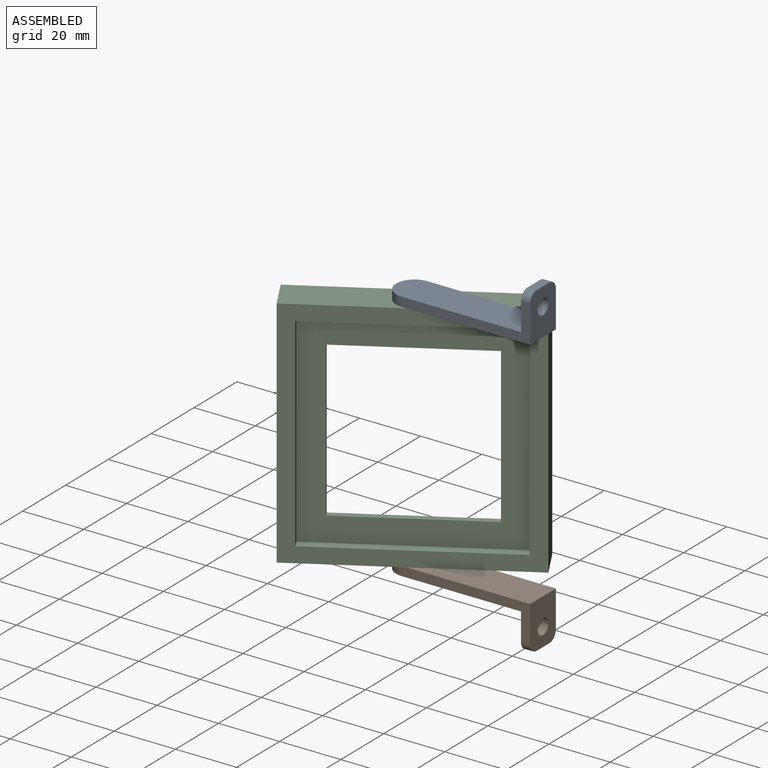
[diagram: assembled view]
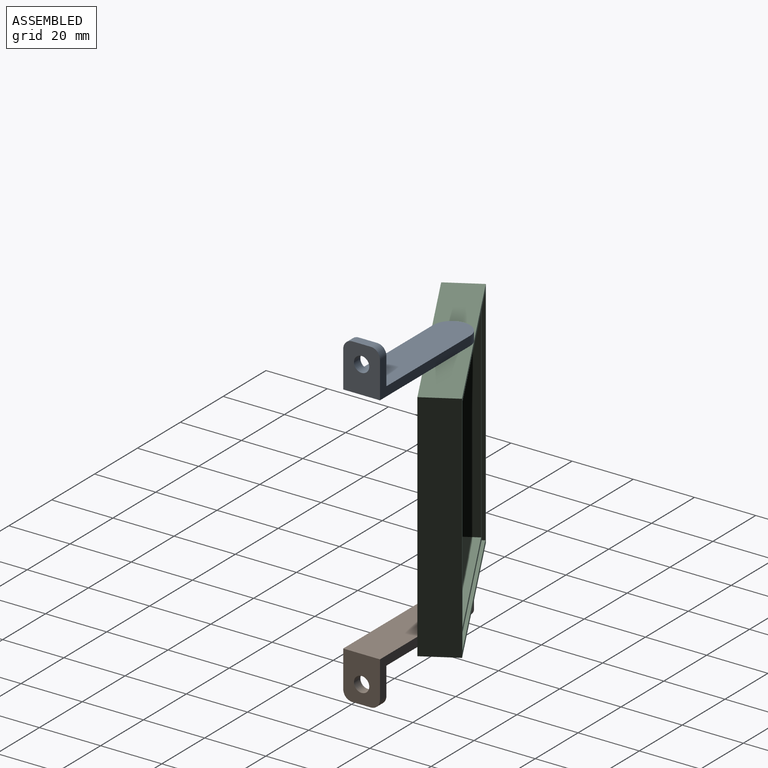
[diagram: assembled view, second angle]
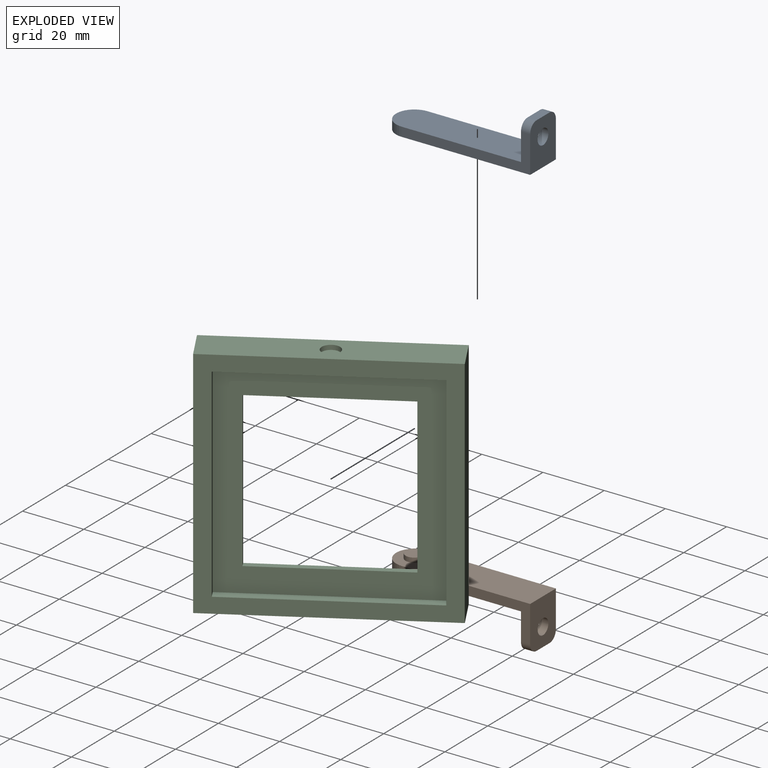
[diagram: exploded view]
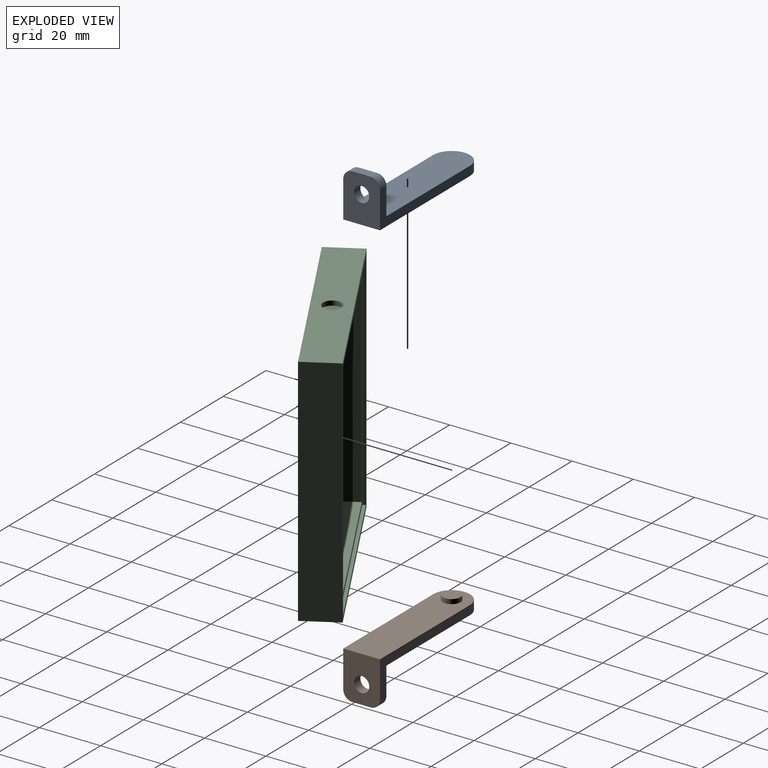
[diagram: exploded view, second angle]
ASSEMBLY  parts=3 mates=2
PART A: 13 faces, bbox 48x12x16.5 mm
  f0: plane 42x12mm, normal (0,1,0), area 153mm2, adj f1,f3,f4,f5,f8,f12
  f1: cylinder r=6mm len=12mm, axis (0,0,-1), area 56.5mm2, adj f0,f2,f4,f5
  f2: plane 42x12mm, normal (0,-1,0), area 153mm2, adj f1,f3,f4,f5,f8,f11
  f3: plane 15x12mm, normal (1,0,0), area 156.5mm2, adj f0,f2,f4,f9,f10,f11,f12
  f4: plane 48x12mm, normal (0,0,1), area 534.1mm2, adj f0,f1,f2,f3,f6
  f5: plane 45x12mm, normal (0,0,-1), area 524.5mm2, adj f0,f1,f2,f8
  f6: cylinder r=2.9mm len=5.8mm, axis (0,0,-1), area 27.3mm2, adj f4,f7
  f7: plane 5.8x5.8mm, normal (0,0,1), area 26.4mm2, adj f6
  f8: plane 12x12mm, normal (-1,0,0), area 120.5mm2, adj f0,f2,f5,f9,f10,f11,f12
  f9: plane 6x3mm, normal (0,0,-1), area 18mm2, adj f3,f8,f11,f12
  f10: cylinder r=2.5mm len=5mm, axis (1,0,0), area 47.1mm2, adj f3,f8
  f11: cylinder r=3mm len=3mm, axis (1,0,0), area 14.1mm2, adj f2,f3,f8,f9
  f12: cylinder r=3mm len=3mm, axis (-1,0,0), area 14.1mm2, adj f0,f3,f8,f9
PART B: same geometry as A
PART C: 29 faces, bbox 76.5x73x12 mm
  f0: plane 66.5x63mm, normal (0,0,-1), area 1816mm2, adj f1,f2,f3,f4,f20,f21,f22,f23
  f1: plane 50.5x2mm, normal (0,-1,0), area 101mm2, adj f0,f2,f4,f5
  f2: plane 47x2mm, normal (-1,0,0), area 94mm2, adj f0,f1,f3,f5
  f3: plane 50.5x2mm, normal (0,1,0), area 101mm2, adj f0,f2,f4,f5
  f4: plane 47x2mm, normal (1,0,0), area 94mm2, adj f0,f1,f3,f5
  f5: plane 70.5x67mm, normal (0,0,1), area 2350mm2, adj f1,f2,f3,f4,f6,f7,f8,f9
  f6: plane 67x6mm, normal (1,0,0), area 402mm2, adj f5,f7,f9,f10
  f7: plane 70.5x6mm, normal (0,1,0), area 423mm2, adj f5,f6,f8,f10
  f8: plane 67x6mm, normal (-1,0,0), area 402mm2, adj f5,f7,f9,f10
  f9: plane 70.5x6mm, normal (0,-1,0), area 423mm2, adj f5,f6,f8,f10
  f10: plane 73.5x70mm, normal (0,0,1), area 421.5mm2, adj f6,f7,f8,f9,f11,f12,f13,f14
  f11: plane 70x1mm, normal (-1,0,0), area 70mm2, adj f10,f12,f14,f19
  f12: plane 73.5x1mm, normal (0,-1,0), area 73.5mm2, adj f10,f11,f13,f19
  f13: plane 70x1mm, normal (1,0,0), area 70mm2, adj f10,f12,f14,f19
  f14: plane 73.5x1mm, normal (0,1,0), area 73.5mm2, adj f10,f11,f13,f19
  f15: plane 73x12mm, normal (1,0,0), area 847.7mm2, adj f16,f18,f19,f24,f25
  f16: plane 76.5x12mm, normal (0,1,0), area 918mm2, adj f15,f17,f19,f24
  f17: plane 73x12mm, normal (-1,0,0), area 847.7mm2, adj f16,f18,f19,f24,f27
  f18: plane 76.5x12mm, normal (0,-1,0), area 918mm2, adj f15,f17,f19,f24
  f19: plane 76.5x73mm, normal (0,0,1), area 439.5mm2, adj f11,f12,f13,f14,f15,f16,f17,f18
  f20: plane 63x3mm, normal (-1,0,0), area 189mm2, adj f0,f21,f23,f24
  f21: plane 66.5x3mm, normal (0,1,0), area 199.5mm2, adj f0,f20,f22,f24
  f22: plane 63x3mm, normal (1,0,0), area 189mm2, adj f0,f21,f23,f24
  f23: plane 66.5x3mm, normal (0,-1,0), area 199.5mm2, adj f0,f20,f22,f24
  f24: plane 76.5x73mm, normal (0,0,-1), area 1395mm2, adj f15,f16,f17,f18,f20,f21,f22,f23
  f25: cylinder r=3mm len=6mm, axis (1,0,0), area 28.3mm2, adj f15,f26
  f26: plane 6x6mm, normal (1,0,0), area 28.3mm2, adj f25
  f27: cylinder r=3mm len=6mm, axis (-1,0,0), area 28.3mm2, adj f17,f28
  f28: plane 6x6mm, normal (-1,0,0), area 28.3mm2, adj f27
PLACE A rot(axis=(1,0,0),180deg) t=(32.6,33.51,62.37)mm
PLACE B t=(32.6,33.51,-20.13)mm
PLACE C rot(axis=(-0.45,-0.77,-0.45),104.5deg) t=(34.1,30.91,21.12)mm
MATE revolute A.f6 <-> C.f25  axis (0,0,-1) through (32.6,33.51,57.87)mm
MATE revolute C.f27 <-> B.f6  axis (0,0,-1) through (32.6,33.51,-15.63)mm
